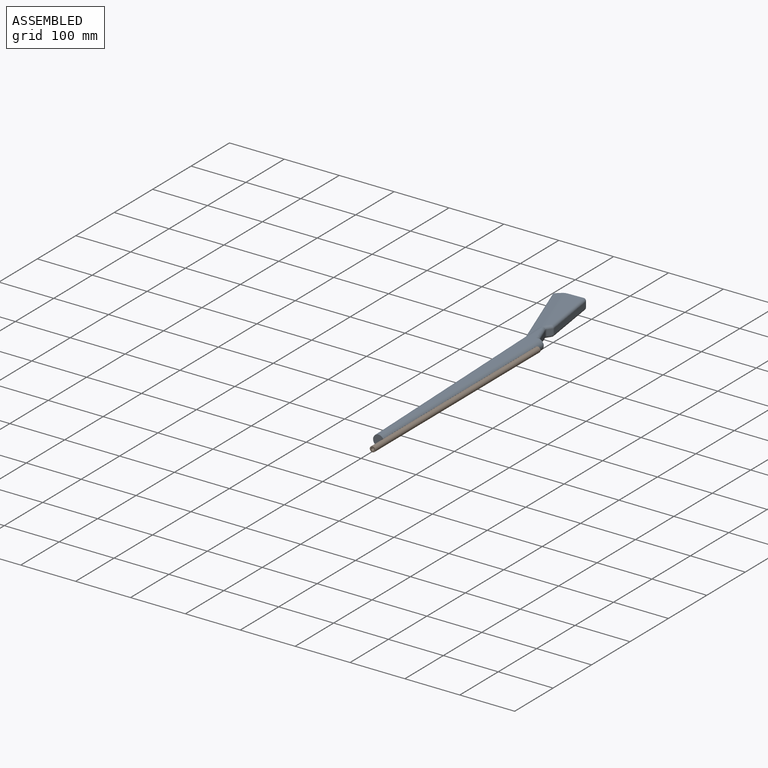
[diagram: assembled view]
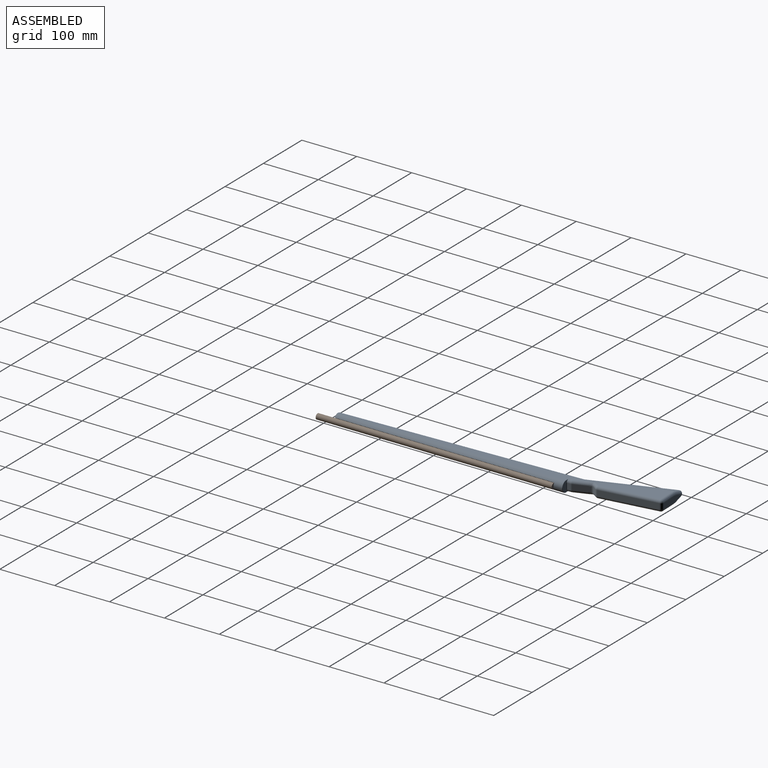
[diagram: assembled view, second angle]
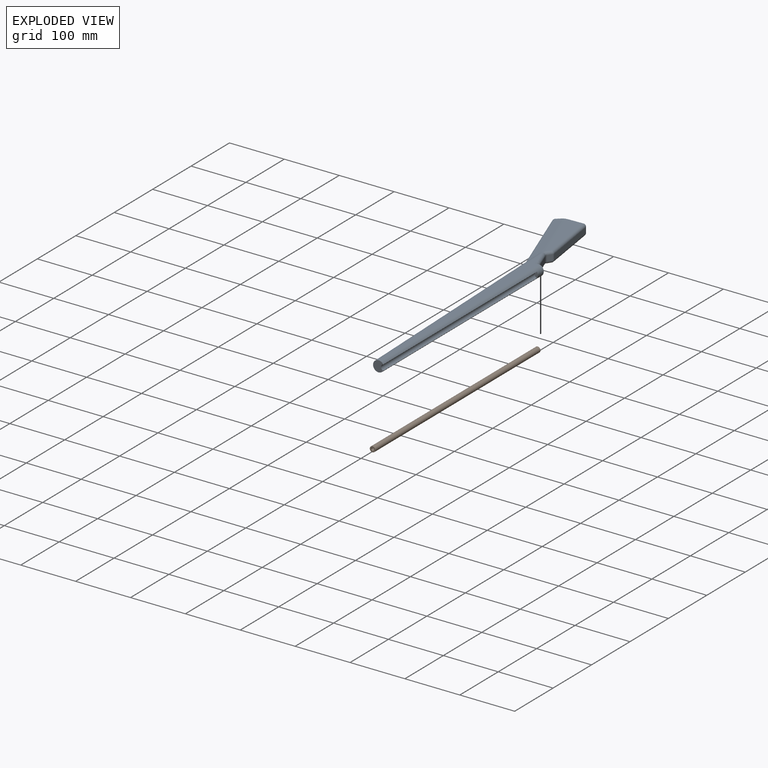
[diagram: exploded view]
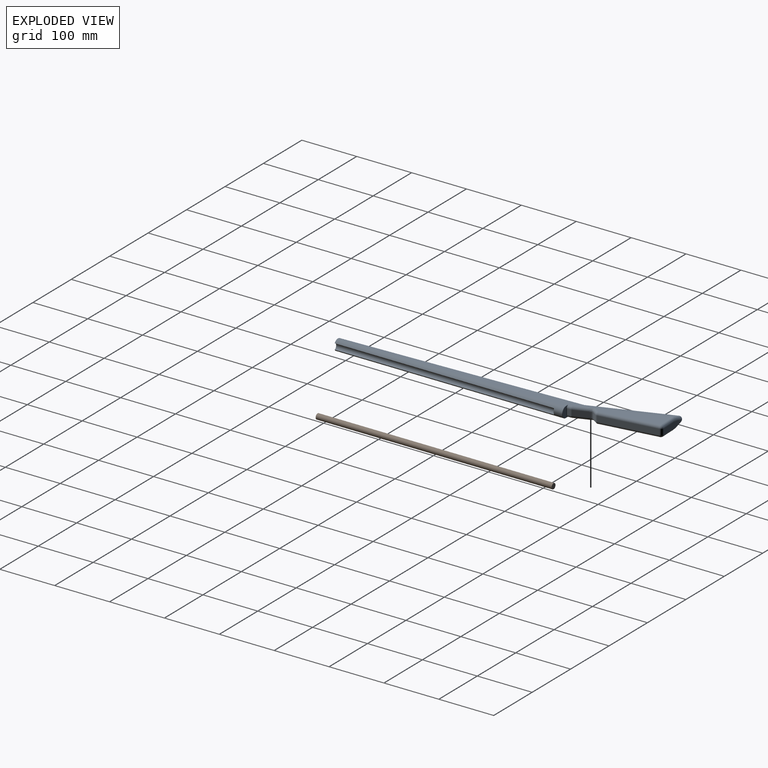
[diagram: exploded view, second angle]
ASSEMBLY  parts=2 mates=2
PART A: 69 faces, bbox 576.1x85.5x24.9 mm
  f0: plane 20x18.49mm, normal (1,-0.04,0), area 272.5mm2, adj f1,f3,f4,f16,f67
  f1: plane 447.33x15.37mm, normal (0,0,1), area 3268mm2, adj f0,f3,f16,f26,f28,f63,f65
  f2: cylinder r=10mm len=4.72mm, axis (-1,0,0), area 3mm2, adj f13,f20,f52
  f3: cylinder r=10mm len=453.64mm, axis (-1,0,0), area 13666mm2, adj f0,f1,f4,f7,f14,f15,f18,f19
  f4: plane 447.33x15.37mm, normal (0,0,-1), area 3268mm2, adj f0,f3,f16,f56,f58,f59,f60
  f5: plane 103.58x11.3mm, normal (-0.11,0.99,0), area 1041.9mm2, adj f22,f25,f36,f48
  f6: plane 48.63x10mm, normal (-1,0,0), area 406.9mm2, adj f22,f38,f39,f40,f42,f44,f45,f46
  f7: plane 153.49x49.9mm, normal (0.31,-0.95,0), area 90.3mm2, adj f3,f18,f19,f42
  f8: plane 19x13.32mm, normal (-1,0,0), area 176.2mm2, adj f59,f61,f62,f63,f64,f66
  f9: plane 10x6.7mm, normal (0,1,0), area 67mm2, adj f23,f26,f58,f64
  f10: plane 28.79x10.03mm, normal (-0.31,0.95,0), area 302.1mm2, adj f23,f24,f28,f29,f55,f56
  f11: plane 10x6.34mm, normal (0.6,0.8,0), area 79.2mm2, adj f24,f25,f34,f50
  f12: plane 110x39.53mm, normal (0,0,1), area 1783.1mm2, adj f17,f21,f33,f34,f36,f38
  f13: plane 110x39.53mm, normal (0,0,-1), area 1783.1mm2, adj f2,f20,f46,f48,f50,f51
  f14: plane 147.27x51.62mm, normal (0.09,-0.27,0.96), area 1774mm2, adj f3,f18,f21,f40
  f15: plane 147.27x51.62mm, normal (0.09,-0.27,-0.96), area 1774mm2, adj f3,f19,f20,f44
  f16: cylinder r=10mm len=415.22mm, axis (1,-0.04,0), area 8584.3mm2, adj f0,f1,f4,f61,f67,f68
  f17: cylinder r=10mm len=4.72mm, axis (-1,0,0), area 3mm2, adj f12,f21,f32
  f18: cylinder r=5mm len=154.57mm, axis (0.95,0.31,0), area 1011.4mm2, adj f3,f7,f14,f41
  f19: cylinder r=5mm len=154.57mm, axis (0.95,0.31,0), area 1011.4mm2, adj f3,f7,f15,f43
  f20: cylinder r=30mm len=121.95mm, axis (-0.95,-0.31,0), area 1039mm2, adj f2,f3,f13,f15,f45,f53
  f21: cylinder r=30mm len=121.95mm, axis (0.95,0.31,0), area 1039mm2, adj f3,f12,f14,f17,f31,f39
  f22: cylinder r=5mm len=10mm, axis (0,0,-1), area 73.1mm2, adj f5,f6,f37,f47
  f23: cylinder r=5mm len=10mm, axis (0,0,-1), area 15.9mm2, adj f9,f10,f27,f57
  f24: cylinder r=5mm len=10mm, axis (0,0,1), area 45.8mm2, adj f10,f11,f30,f31,f32,f33,f51,f52
  f25: cylinder r=5mm len=10mm, axis (0,0,-1), area 37.6mm2, adj f5,f11,f35,f49
  f26: cylinder r=5mm len=6.7mm, axis (1,0,0), area 52.6mm2, adj f1,f9,f27,f66
  f27: sphere r=5mm, area 7.9mm2, adj f23,f26,f28
  f28: cylinder r=5mm len=25.94mm, axis (0.95,0.31,0), area 201.5mm2, adj f1,f10,f27,f29
  f29: bspline ~8.8x8.76mm, area 42.1mm2, adj f3,f10,f28,f30
  f30: bspline ~7.52x7.25mm, area 15.1mm2, adj f3,f24,f29,f31
  f31: bspline ~7.54x7.52mm, area 31.6mm2, adj f21,f24,f30,f32
  f32: bspline ~6.68x6.29mm, area 12.7mm2, adj f17,f24,f31,f33
  f33: torus R=10mm, axis (0,0,1), area 0.6mm2, adj f12,f24,f32,f34
  f34: cylinder r=5mm len=9.34mm, axis (0.8,-0.6,0), area 62.2mm2, adj f11,f12,f33,f35
  f35: sphere r=5mm, area 27.2mm2, adj f25,f34,f36
  f36: cylinder r=5mm len=104.12mm, axis (0.99,0.11,0), area 818.3mm2, adj f5,f12,f35,f37
  f37: sphere r=5mm, area 51.8mm2, adj f22,f36,f38
  f38: cylinder r=5mm len=28.23mm, axis (0,1,0), area 221.7mm2, adj f6,f12,f37,f39
  f39: bspline ~18.82x7.38mm, area 69.1mm2, adj f6,f21,f38,f40
  f40: cylinder r=5mm len=14.22mm, axis (0,-0.96,-0.27), area 110.9mm2, adj f6,f14,f39,f41
  f41: sphere r=5mm, area 51.7mm2, adj f18,f40,f42
  f42: cylinder r=5mm len=6.55mm, axis (0,0,-1), area 5.3mm2, adj f6,f7,f41,f43
  f43: sphere r=5mm, area 25.4mm2, adj f19,f42,f44
  f44: cylinder r=5mm len=14.22mm, axis (0,-0.96,0.27), area 110.9mm2, adj f6,f15,f43,f45
  f45: bspline ~18.82x7.38mm, area 69.1mm2, adj f6,f20,f44,f46
  f46: cylinder r=5mm len=28.23mm, axis (0,-1,0), area 221.7mm2, adj f6,f13,f45,f47
  f47: sphere r=5mm, area 51.8mm2, adj f22,f46,f48
  f48: cylinder r=5mm len=104.12mm, axis (-0.99,-0.11,0), area 818.3mm2, adj f5,f13,f47,f49
  f49: sphere r=5mm, area 27.2mm2, adj f25,f48,f50
  f50: cylinder r=5mm len=9.34mm, axis (-0.8,0.6,0), area 62.2mm2, adj f11,f13,f49,f51
  f51: torus R=10mm, axis (0,0,1), area 0.6mm2, adj f13,f24,f50,f52
  f52: bspline ~6.95x6.23mm, area 12.7mm2, adj f2,f24,f51,f53
  f53: bspline ~7.78x7.7mm, area 31.6mm2, adj f20,f24,f52,f54
  f54: bspline ~7.5x7.37mm, area 15.1mm2, adj f3,f24,f53,f55
  f55: bspline ~9.2x8.98mm, area 42.1mm2, adj f3,f10,f54,f56
  f56: cylinder r=5mm len=25.94mm, axis (-0.95,-0.31,0), area 201.5mm2, adj f4,f10,f55,f57
  f57: sphere r=5mm, area 7.9mm2, adj f23,f56,f58
  f58: cylinder r=5mm len=6.7mm, axis (-1,0,0), area 52.6mm2, adj f4,f9,f57,f62
  f59: cylinder r=0.5mm len=3.81mm, axis (0,-1,0), area 3mm2, adj f4,f8,f60,f61
  f60: bspline ~3.16x1mm, area 0.8mm2, adj f4,f59,f62
  f61: bspline ~20x11.76mm, area 24.6mm2, adj f8,f16,f59,f63
  f62: torus R=5.5mm, axis (1,0,0), area 5.1mm2, adj f8,f58,f60,f64
  f63: cylinder r=0.5mm len=3.81mm, axis (0,1,0), area 3mm2, adj f1,f8,f61,f65
  f64: cylinder r=0.5mm len=10mm, axis (0,0,1), area 7.9mm2, adj f8,f9,f62,f66
  f65: bspline ~3.29x1mm, area 0.8mm2, adj f1,f63,f66
  f66: torus R=5.5mm, axis (1,0,0), area 5.1mm2, adj f8,f26,f64,f65
  f67: cylinder r=5.5mm len=399.88mm, axis (1,-0.04,0), area 5685.7mm2, adj f0,f16,f68
  f68: plane 10.58x5.5mm, normal (1,-0.04,0), area 41.9mm2, adj f16,f67
PART B: 5 faces, bbox 10x430x10 mm
  f0: cylinder r=5mm len=430mm, axis (0,1,0), area 13508.8mm2, adj f1,f2
  f1: plane 10x10mm, normal (0,-1,0), area 58.9mm2, adj f0,f3
  f2: plane 10x10mm, normal (0,1,0), area 78.5mm2, adj f0
  f3: cylinder r=2.5mm len=420mm, axis (0,-1,0), area 6597.3mm2, adj f1,f4
  f4: plane 5x5mm, normal (0,-1,0), area 19.6mm2, adj f3
PLACE A rot(axis=(0,0,-1),87.9deg) t=(-29.99,-113.48,9.98)mm fixed
PLACE B rot(axis=(0,1,0),94.1deg) t=(19.21,32.41,9.98)mm
MATE planar A.f68 <-> B.f0  axis (0,-1,0) through (16.62,32.41,9.98)mm
MATE cylindrical A.f67 <-> B.f0  axis (0,-1,0) through (19.21,32.41,9.98)mm
